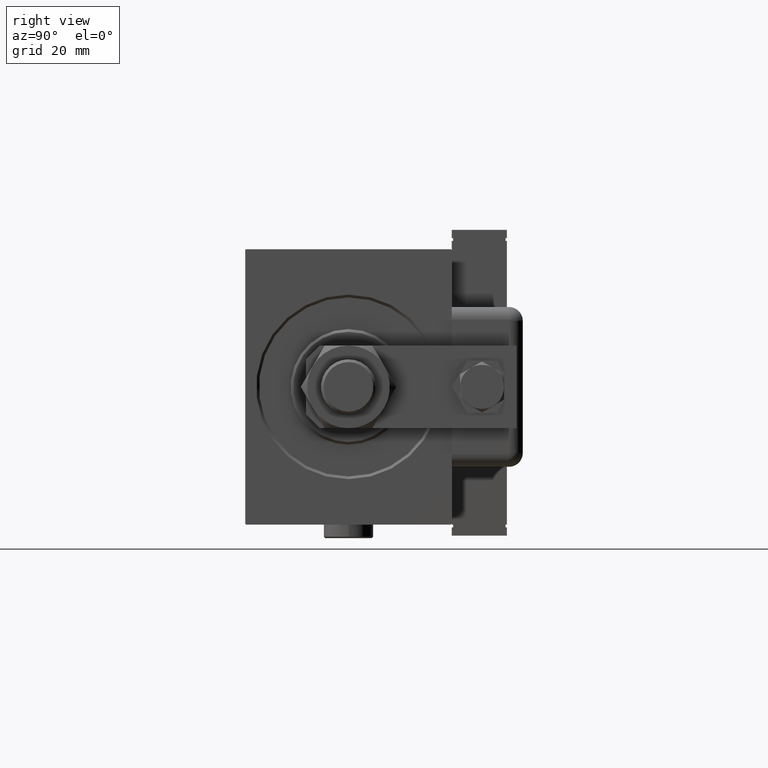
[diagram: clean part render]
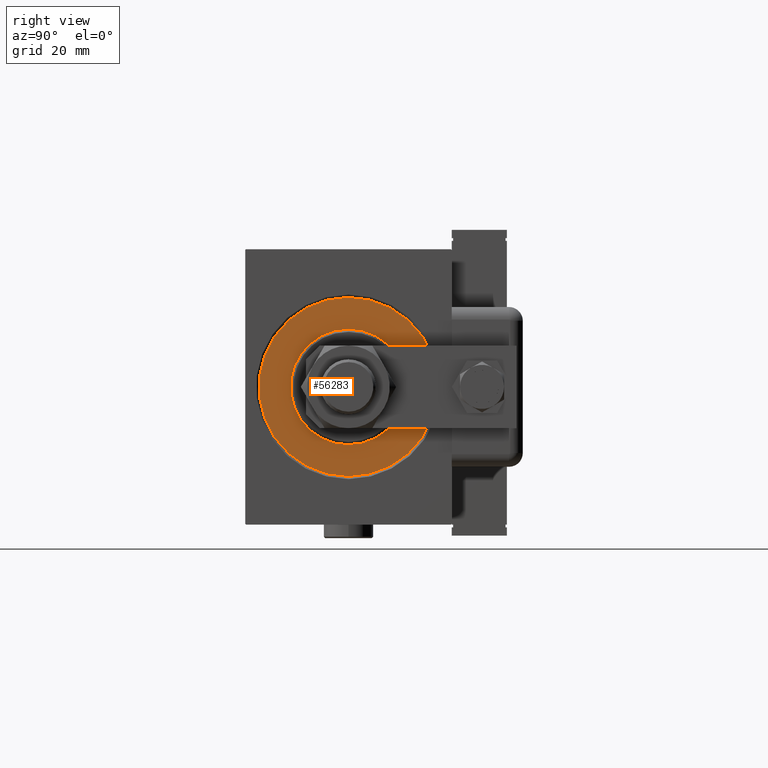
[diagram: same view with one face highlighted and labeled with its STEP entity id]
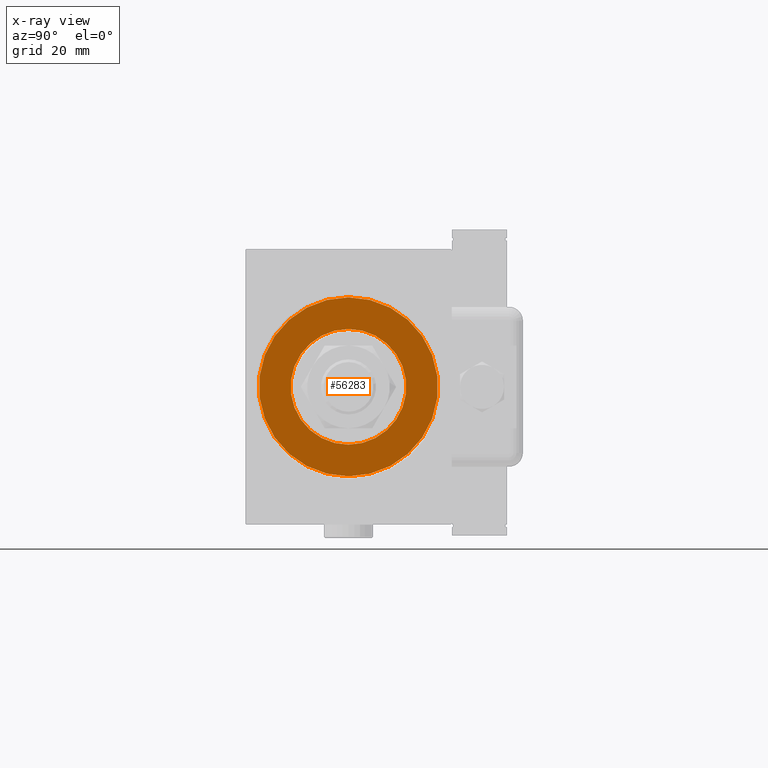
[diagram: x-ray of the same camera — body ghosted, the highlighted face saturated]
A machine part, right view. The second image highlights one B-rep face of the part: STEP entity #56283.
The next image is the same camera in x-ray: the body ghosted, the highlighted face saturated — about 0% of this face is hidden behind the body in this view.
In plain terms, the highlighted planar face has unit normal (1, 0, 0).
Its self-contained STEP definition (entity closure, byte-faithful):
#735 = DIRECTION ( 'NONE',  ( 0.000000000000000000, 0.000000000000000000, -1.000000000000000000 ) ) ;
#1235 = CIRCLE ( 'NONE', #8258, 21.00000000000000000 ) ;
#1606 = DIRECTION ( 'NONE',  ( 0.000000000000000000, 0.000000000000000000, -1.000000000000000000 ) ) ;
#2785 = EDGE_CURVE ( 'NONE', #48379, #53713, #9268, .T. ) ;
#7373 = ORIENTED_EDGE ( 'NONE', *, *, #21990, .T. ) ;
#8258 = AXIS2_PLACEMENT_3D ( 'NONE', #50203, #27729, #21499 ) ;
#9268 = CIRCLE ( 'NONE', #16273, 21.00000000000000000 ) ;
#12837 = CARTESIAN_POINT ( 'NONE',  ( 0.000000000000000000, 0.000000000000000000, 0.000000000000000000 ) ) ;
#13803 = EDGE_LOOP ( 'NONE', ( #49438, #61537 ) ) ;
#15425 = FACE_BOUND ( 'NONE', #13803, .T. ) ;
#16273 = AXIS2_PLACEMENT_3D ( 'NONE', #31541, #60231, #17803 ) ;
#16297 = DIRECTION ( 'NONE',  ( 1.000000000000000000, 0.000000000000000000, 0.000000000000000000 ) ) ;
#17601 = EDGE_CURVE ( 'NONE', #31737, #60249, #18445, .T. ) ;
#17803 = DIRECTION ( 'NONE',  ( 0.000000000000000000, 0.000000000000000000, -1.000000000000000000 ) ) ;
#18445 = CIRCLE ( 'NONE', #26429, 32.50000000000000000 ) ;
#21499 = DIRECTION ( 'NONE',  ( 0.000000000000000000, 0.000000000000000000, -1.000000000000000000 ) ) ;
#21641 = EDGE_LOOP ( 'NONE', ( #7373, #29986 ) ) ;
#21990 = EDGE_CURVE ( 'NONE', #60249, #31737, #23648, .T. ) ;
#23123 = DIRECTION ( 'NONE',  ( 1.000000000000000000, 0.000000000000000000, 0.000000000000000000 ) ) ;
#23648 = CIRCLE ( 'NONE', #32624, 32.50000000000000000 ) ;
#25557 = CARTESIAN_POINT ( 'NONE',  ( 0.000000000000000000, 3.980102097228898626E-15, 32.50000000000000000 ) ) ;
#26429 = AXIS2_PLACEMENT_3D ( 'NONE', #12837, #23123, #41550 ) ;
#27729 = DIRECTION ( 'NONE',  ( 1.000000000000000000, -0.000000000000000000, 0.000000000000000000 ) ) ;
#28862 = DIRECTION ( 'NONE',  ( 1.000000000000000000, 0.000000000000000000, 0.000000000000000000 ) ) ;
#29986 = ORIENTED_EDGE ( 'NONE', *, *, #17601, .T. ) ;
#31541 = CARTESIAN_POINT ( 'NONE',  ( 0.000000000000000000, 0.000000000000000000, 0.000000000000000000 ) ) ;
#31737 = VERTEX_POINT ( 'NONE', #25557 ) ;
#32063 = CARTESIAN_POINT ( 'NONE',  ( 0.000000000000000000, 0.000000000000000000, -32.50000000000000000 ) ) ;
#32624 = AXIS2_PLACEMENT_3D ( 'NONE', #59675, #16297, #1606 ) ;
#35057 = CARTESIAN_POINT ( 'NONE',  ( 0.000000000000000000, 2.571758278209441661E-15, -21.00000000000000000 ) ) ;
#37936 = FACE_OUTER_BOUND ( 'NONE', #21641, .T. ) ;
#40103 = EDGE_CURVE ( 'NONE', #53713, #48379, #1235, .T. ) ;
#41550 = DIRECTION ( 'NONE',  ( 0.000000000000000000, 0.000000000000000000, -1.000000000000000000 ) ) ;
#43835 = CARTESIAN_POINT ( 'NONE',  ( 0.000000000000000000, 0.000000000000000000, 0.000000000000000000 ) ) ;
#44633 = AXIS2_PLACEMENT_3D ( 'NONE', #43835, #28862, #735 ) ;
#48379 = VERTEX_POINT ( 'NONE', #54589 ) ;
#49438 = ORIENTED_EDGE ( 'NONE', *, *, #2785, .F. ) ;
#50203 = CARTESIAN_POINT ( 'NONE',  ( 0.000000000000000000, 0.000000000000000000, 0.000000000000000000 ) ) ;
#53713 = VERTEX_POINT ( 'NONE', #35057 ) ;
#54589 = CARTESIAN_POINT ( 'NONE',  ( 0.000000000000000000, 0.000000000000000000, 21.00000000000000000 ) ) ;
#56283 = ADVANCED_FACE ( 'NONE', ( #37936, #15425 ), #56947, .T. ) ;
#56947 = PLANE ( 'NONE',  #44633 ) ;
#59675 = CARTESIAN_POINT ( 'NONE',  ( 0.000000000000000000, 0.000000000000000000, 0.000000000000000000 ) ) ;
#60231 = DIRECTION ( 'NONE',  ( 1.000000000000000000, -0.000000000000000000, 0.000000000000000000 ) ) ;
#60249 = VERTEX_POINT ( 'NONE', #32063 ) ;
#61537 = ORIENTED_EDGE ( 'NONE', *, *, #40103, .F. ) ;